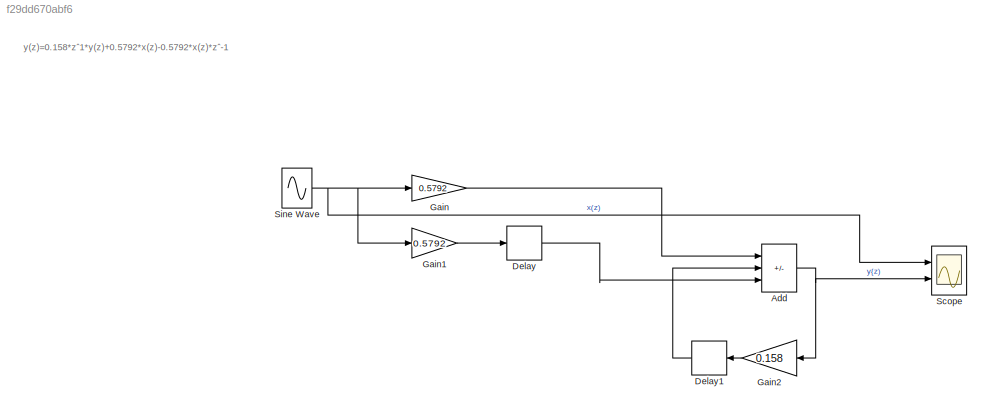
MODEL slx_f29dd670abf6
KIND model
CONFIG AbsTol = auto
CONFIG EnableMultiTasking = off
CONFIG FixedStep = auto
CONFIG MaxStep = auto
CONFIG MinStep = auto
CONFIG RelTol = 1e-3
CONFIG SampleTimeConstraint = Unconstrained
CONFIG Solver = VariableStepAuto
CONFIG SolverName = VariableStepAuto
CONFIG StartTime = 0.0
CONFIG StopTime = 100.0
BLOCK [Sum] Add
  IconShape = rectangular
  Inputs = ++-
  Ports = [3, 1]
BLOCK [Delay] Delay
  DelayLength = 1
  InputPortMap = u0
  Ports = [1, 1]
BLOCK [Delay] Delay1
  DelayLength = 1
  InputPortMap = u0
  NameLocation = top
  Ports = [1, 1]
BLOCK [Gain] Gain
  Gain = 0.5792
BLOCK [Gain] Gain1
  Gain = 0.5792
BLOCK [Gain] Gain2
  Gain = 0.158
  NameLocation = top
BLOCK [Scope] Scope
  Floating = off
  NumInputPorts = 2
  Ports = [2]
  ScopeSpecificationString = Simulink.scopes.TimeScopeBlockCfg('CurrentConfiguration', extmgr.ConfigurationSet(extmgr.Configuration('Core','General UI',true),extmgr.Configuration('Core','Source UI',true),extmgr.Configuration('Sources','WiredSimulink',true),extmgr.Configuration('Visuals','Time Domain',true,'SerializedDisplays',{struct('MinYLimReal','-1.23323','MaxYLimReal','1.09909','YLabelReal','','MinYLimMag','0.00000','MaxY...<+2039ch>
BLOCK [Sin] Sine Wave
  Frequency = 62
  Ports = [0, 1]
  SampleTime = 0
ANNOTATION (root): y(z)=0.158*zˆ1*y(z)+0.5792*x(z)-0.5792*x(z)*zˆ-1
NET Add:1 -> Gain2:1, Scope:2
LINE Delay1:1 -> Add:2
LINE Delay:1 -> Add:3
LINE Gain1:1 -> Delay:1
LINE Gain2:1 -> Delay1:1
LINE Gain:1 -> Add:1
NET Sine Wave:1 -> Gain1:1, Gain:1, Scope:1
note: NET lines group one-source signal fan-out (src -> all destinations, sorted); 1:1 wires keep LINE
